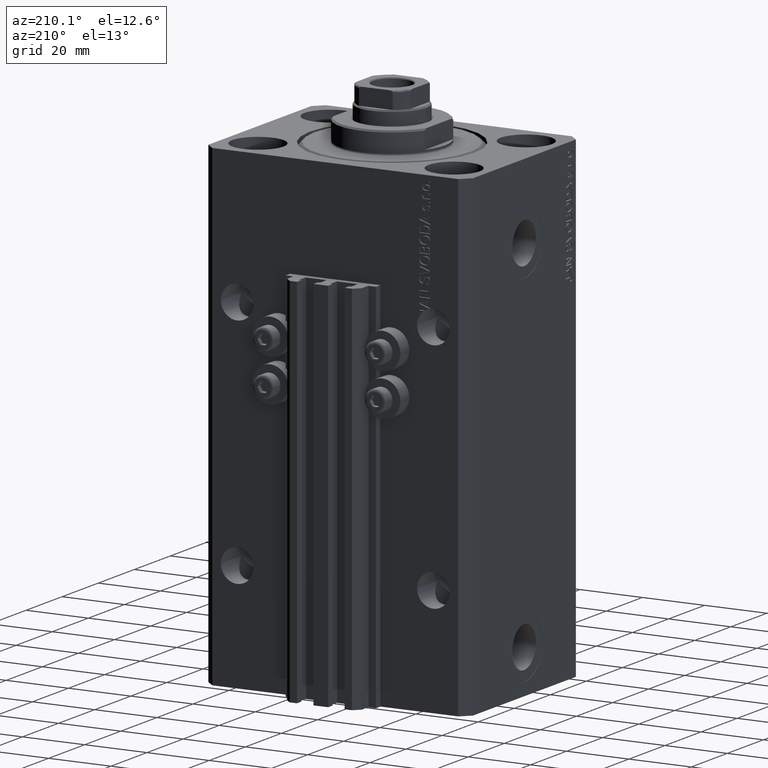
[diagram: clean part render]
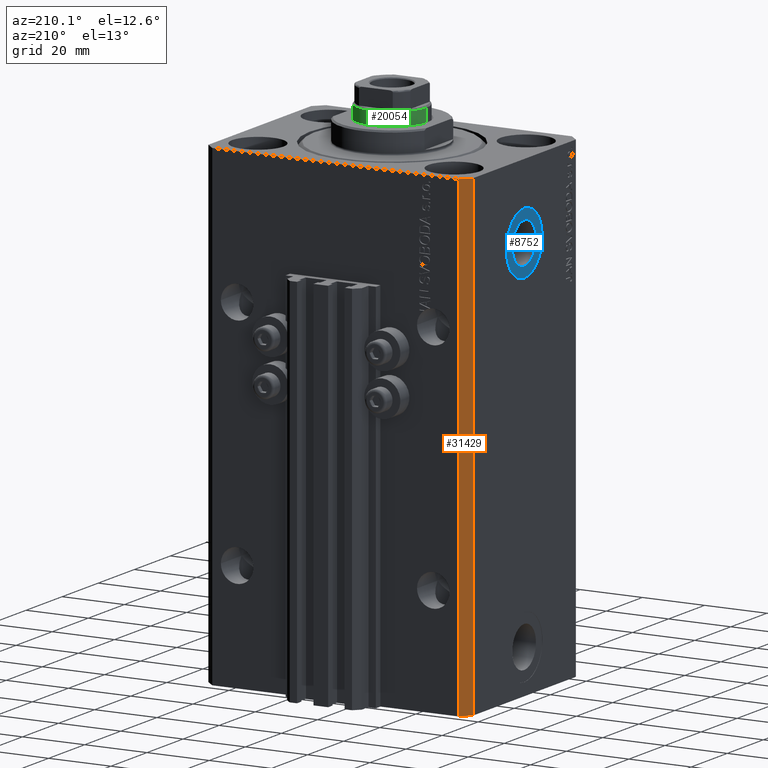
[diagram: same view with three faces highlighted in distinct colors, each labeled with its STEP entity id]
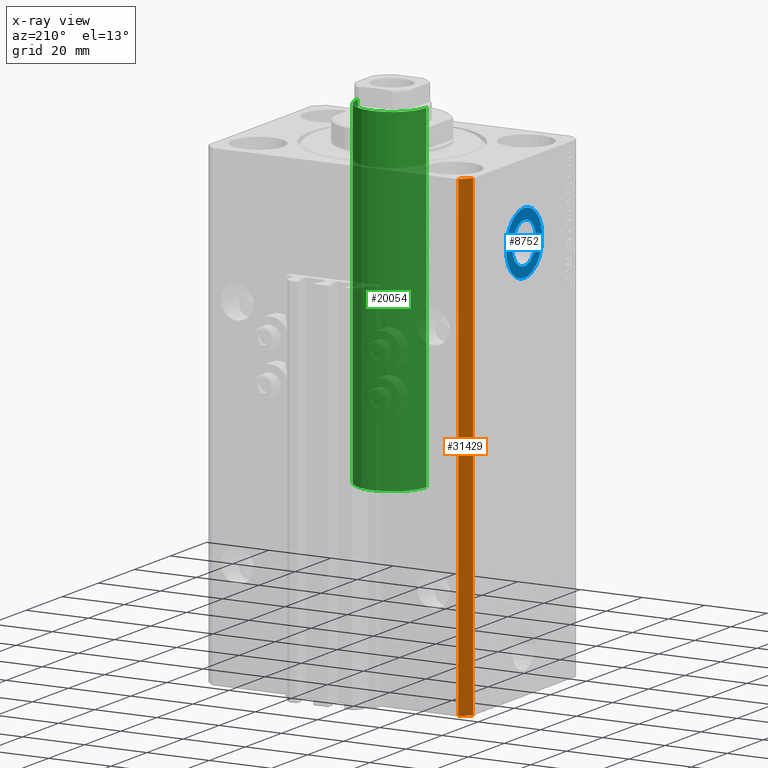
[diagram: x-ray of the same camera — body ghosted, the three highlighted faces saturated]
A machine part, auxiliary view with three faces highlighted in distinct colors.
The next image is the same camera in x-ray (body ghosted, the three faces saturated) — at least one of them is partly hidden behind the body in this view.
Their STEP definitions:

[orange] entity #31429 — the highlighted planar face has unit normal (-0.7071, 0.7071, 0).
#127 = VERTEX_POINT ( 'NONE', #7714 ) ;
#3385 = DIRECTION ( 'NONE',  ( 0.000000000000000000, 0.000000000000000000, 1.000000000000000000 ) ) ;
#3902 = PLANE ( 'NONE',  #23379 ) ;
#5916 = VECTOR ( 'NONE', #3385, 1000.000000000000000 ) ;
#6339 = EDGE_CURVE ( 'NONE', #32151, #127, #25115, .T. ) ;
#6736 = VERTEX_POINT ( 'NONE', #27906 ) ;
#6861 = CARTESIAN_POINT ( 'NONE',  ( -39.50000000000000711, 31.50000000000000000, -153.0000000000000000 ) ) ;
#7714 = CARTESIAN_POINT ( 'NONE',  ( -42.50000000000000000, 28.50000000000000000, 0.000000000000000000 ) ) ;
#9529 = CARTESIAN_POINT ( 'NONE',  ( -42.50000000000000000, 28.50000000000000000, -153.0000000000000000 ) ) ;
#9809 = CARTESIAN_POINT ( 'NONE',  ( -39.50000000000000711, 31.50000000000000000, -153.0000000000000000 ) ) ;
#10427 = VECTOR ( 'NONE', #46942, 1000.000000000000000 ) ;
#12458 = EDGE_CURVE ( 'NONE', #15511, #32151, #48421, .T. ) ;
#15511 = VERTEX_POINT ( 'NONE', #9809 ) ;
#16386 = DIRECTION ( 'NONE',  ( -0.7071067811865471286, -0.7071067811865479058, 0.000000000000000000 ) ) ;
#16877 = CARTESIAN_POINT ( 'NONE',  ( -39.50000000000000711, 31.50000000000000000, 0.000000000000000000 ) ) ;
#18406 = ORIENTED_EDGE ( 'NONE', *, *, #6339, .T. ) ;
#20845 = VECTOR ( 'NONE', #16386, 1000.000000000000000 ) ;
#22077 = LINE ( 'NONE', #29006, #5916 ) ;
#23379 = AXIS2_PLACEMENT_3D ( 'NONE', #41300, #32709, #29514 ) ;
#25115 = LINE ( 'NONE', #9529, #10427 ) ;
#27906 = CARTESIAN_POINT ( 'NONE',  ( -39.50000000000000711, 31.50000000000000000, 0.000000000000000000 ) ) ;
#29006 = CARTESIAN_POINT ( 'NONE',  ( -39.50000000000000711, 31.50000000000000000, -153.0000000000000000 ) ) ;
#29514 = DIRECTION ( 'NONE',  ( -0.7071067811865471286, -0.7071067811865479058, 0.000000000000000000 ) ) ;
#30690 = ORIENTED_EDGE ( 'NONE', *, *, #12458, .T. ) ;
#31389 = LINE ( 'NONE', #16877, #20845 ) ;
#31429 = ADVANCED_FACE ( 'NONE', ( #33428 ), #3902, .T. ) ;
#32151 = VERTEX_POINT ( 'NONE', #32426 ) ;
#32426 = CARTESIAN_POINT ( 'NONE',  ( -42.50000000000000000, 28.50000000000000000, -153.0000000000000000 ) ) ;
#32709 = DIRECTION ( 'NONE',  ( -0.7071067811865479058, 0.7071067811865471286, 0.000000000000000000 ) ) ;
#33428 = FACE_OUTER_BOUND ( 'NONE', #44779, .T. ) ;
#40171 = VECTOR ( 'NONE', #44010, 1000.000000000000000 ) ;
#41274 = EDGE_CURVE ( 'NONE', #15511, #6736, #22077, .T. ) ;
#41300 = CARTESIAN_POINT ( 'NONE',  ( -39.50000000000000711, 31.50000000000000000, -153.0000000000000000 ) ) ;
#41424 = EDGE_CURVE ( 'NONE', #6736, #127, #31389, .T. ) ;
#41464 = ORIENTED_EDGE ( 'NONE', *, *, #41424, .F. ) ;
#42733 = ORIENTED_EDGE ( 'NONE', *, *, #41274, .F. ) ;
#44010 = DIRECTION ( 'NONE',  ( -0.7071067811865471286, -0.7071067811865479058, 0.000000000000000000 ) ) ;
#44779 = EDGE_LOOP ( 'NONE', ( #41464, #42733, #30690, #18406 ) ) ;
#46942 = DIRECTION ( 'NONE',  ( 0.000000000000000000, 0.000000000000000000, 1.000000000000000000 ) ) ;
#48421 = LINE ( 'NONE', #6861, #40171 ) ;

[blue] entity #8752 — the highlighted planar face has unit normal (-1, 0, 0).
#818 = CARTESIAN_POINT ( 'NONE',  ( -42.39999999999999858, -3.469446951953614189E-15, -14.00000000000000000 ) ) ;
#1931 = CARTESIAN_POINT ( 'NONE',  ( -42.39999999999999858, -3.469446951953614189E-15, -24.00000000000000000 ) ) ;
#2478 = ORIENTED_EDGE ( 'NONE', *, *, #45964, .T. ) ;
#2924 = CARTESIAN_POINT ( 'NONE',  ( -42.39999999999999858, -2.244800152806261524E-15, -34.00000000000000000 ) ) ;
#4267 = CARTESIAN_POINT ( 'NONE',  ( -42.39999999999999858, -3.469446951953614189E-15, -24.00000000000000000 ) ) ;
#7691 = EDGE_LOOP ( 'NONE', ( #2478, #33466 ) ) ;
#8752 = ADVANCED_FACE ( 'NONE', ( #19985, #46064 ), #34270, .T. ) ;
#9371 = VERTEX_POINT ( 'NONE', #18029 ) ;
#9775 = CARTESIAN_POINT ( 'NONE',  ( -42.39999999999999858, -3.469446951953614189E-15, -17.42000000000000171 ) ) ;
#12462 = VERTEX_POINT ( 'NONE', #2924 ) ;
#12904 = CARTESIAN_POINT ( 'NONE',  ( -42.39999999999999858, -3.469446951953614189E-15, -24.00000000000000000 ) ) ;
#15901 = DIRECTION ( 'NONE',  ( -1.000000000000000000, 0.000000000000000000, 0.000000000000000000 ) ) ;
#17542 = EDGE_CURVE ( 'NONE', #9371, #46534, #33212, .T. ) ;
#18029 = CARTESIAN_POINT ( 'NONE',  ( -42.39999999999999858, -2.663629358114655936E-15, -30.57999999999999829 ) ) ;
#19985 = FACE_BOUND ( 'NONE', #42497, .T. ) ;
#21766 = AXIS2_PLACEMENT_3D ( 'NONE', #1931, #29010, #35888 ) ;
#21937 = DIRECTION ( 'NONE',  ( -1.000000000000000000, 0.000000000000000000, 0.000000000000000000 ) ) ;
#25147 = CARTESIAN_POINT ( 'NONE',  ( -42.39999999999999858, -3.469446951953614189E-15, -24.00000000000000000 ) ) ;
#25366 = ORIENTED_EDGE ( 'NONE', *, *, #17542, .F. ) ;
#27925 = DIRECTION ( 'NONE',  ( -1.000000000000000000, 0.000000000000000000, 0.000000000000000000 ) ) ;
#28854 = CIRCLE ( 'NONE', #39948, 6.579999999999999183 ) ;
#29010 = DIRECTION ( 'NONE',  ( -1.000000000000000000, 0.000000000000000000, 0.000000000000000000 ) ) ;
#30675 = CARTESIAN_POINT ( 'NONE',  ( -42.39999999999999858, -3.469446951953614189E-15, -24.00000000000000000 ) ) ;
#30912 = DIRECTION ( 'NONE',  ( 0.000000000000000000, 0.000000000000000000, 1.000000000000000000 ) ) ;
#31273 = CIRCLE ( 'NONE', #21766, 10.00000000000000000 ) ;
#31774 = VERTEX_POINT ( 'NONE', #818 ) ;
#32745 = AXIS2_PLACEMENT_3D ( 'NONE', #12904, #27925, #44080 ) ;
#33096 = EDGE_CURVE ( 'NONE', #12462, #31774, #31273, .T. ) ;
#33212 = CIRCLE ( 'NONE', #44259, 6.579999999999999183 ) ;
#33391 = EDGE_CURVE ( 'NONE', #46534, #9371, #28854, .T. ) ;
#33466 = ORIENTED_EDGE ( 'NONE', *, *, #33096, .T. ) ;
#34270 = PLANE ( 'NONE',  #37255 ) ;
#34910 = ORIENTED_EDGE ( 'NONE', *, *, #33391, .F. ) ;
#35888 = DIRECTION ( 'NONE',  ( 0.000000000000000000, 0.000000000000000000, 1.000000000000000000 ) ) ;
#37255 = AXIS2_PLACEMENT_3D ( 'NONE', #4267, #46304, #42388 ) ;
#37443 = CIRCLE ( 'NONE', #32745, 10.00000000000000000 ) ;
#39948 = AXIS2_PLACEMENT_3D ( 'NONE', #30675, #15901, #30912 ) ;
#40164 = DIRECTION ( 'NONE',  ( 0.000000000000000000, 0.000000000000000000, 1.000000000000000000 ) ) ;
#42388 = DIRECTION ( 'NONE',  ( 0.000000000000000000, 0.000000000000000000, 1.000000000000000000 ) ) ;
#42497 = EDGE_LOOP ( 'NONE', ( #34910, #25366 ) ) ;
#44080 = DIRECTION ( 'NONE',  ( 0.000000000000000000, 0.000000000000000000, 1.000000000000000000 ) ) ;
#44259 = AXIS2_PLACEMENT_3D ( 'NONE', #25147, #21937, #40164 ) ;
#45964 = EDGE_CURVE ( 'NONE', #31774, #12462, #37443, .T. ) ;
#46064 = FACE_OUTER_BOUND ( 'NONE', #7691, .T. ) ;
#46304 = DIRECTION ( 'NONE',  ( -1.000000000000000000, 0.000000000000000000, 0.000000000000000000 ) ) ;
#46534 = VERTEX_POINT ( 'NONE', #9775 ) ;

[green] entity #20054 — the highlighted cylindrical surface (partial cylindrical patch) has radius 11 mm, axis along (-0, -0, -1).
#572 = VERTEX_POINT ( 'NONE', #37900 ) ;
#4000 = ORIENTED_EDGE ( 'NONE', *, *, #21446, .T. ) ;
#4516 = DIRECTION ( 'NONE',  ( -0.000000000000000000, -0.000000000000000000, -1.000000000000000000 ) ) ;
#4706 = LINE ( 'NONE', #8160, #40478 ) ;
#4898 = CARTESIAN_POINT ( 'NONE',  ( 0.000000000000000000, 0.000000000000000000, 152.6000000000000512 ) ) ;
#4933 = CIRCLE ( 'NONE', #32450, 11.00000000000000000 ) ;
#8160 = CARTESIAN_POINT ( 'NONE',  ( 11.00000000000000000, 1.347111479062088405E-15, 153.1000000000000227 ) ) ;
#8197 = LINE ( 'NONE', #38212, #41261 ) ;
#9479 = CYLINDRICAL_SURFACE ( 'NONE', #13662, 11.00000000000000000 ) ;
#11218 = CIRCLE ( 'NONE', #33978, 11.00000000000000000 ) ;
#12222 = VERTEX_POINT ( 'NONE', #17747 ) ;
#13227 = CARTESIAN_POINT ( 'NONE',  ( -11.00000000000000000, 0.000000000000000000, 44.60000000000000142 ) ) ;
#13662 = AXIS2_PLACEMENT_3D ( 'NONE', #24497, #39511, #20806 ) ;
#14348 = VERTEX_POINT ( 'NONE', #13227 ) ;
#15246 = DIRECTION ( 'NONE',  ( 1.000000000000000000, 0.000000000000000000, 0.000000000000000000 ) ) ;
#17747 = CARTESIAN_POINT ( 'NONE',  ( -11.00000000000000000, 0.000000000000000000, 152.6000000000000512 ) ) ;
#20054 = ADVANCED_FACE ( 'NONE', ( #35568 ), #9479, .T. ) ;
#20806 = DIRECTION ( 'NONE',  ( -1.000000000000000000, 0.000000000000000000, 0.000000000000000000 ) ) ;
#21443 = EDGE_CURVE ( 'NONE', #36559, #14348, #4933, .T. ) ;
#21446 = EDGE_CURVE ( 'NONE', #12222, #572, #11218, .T. ) ;
#24497 = CARTESIAN_POINT ( 'NONE',  ( 0.000000000000000000, 0.000000000000000000, 153.1000000000000227 ) ) ;
#24950 = EDGE_CURVE ( 'NONE', #572, #36559, #4706, .T. ) ;
#25438 = ORIENTED_EDGE ( 'NONE', *, *, #21443, .T. ) ;
#26490 = EDGE_CURVE ( 'NONE', #12222, #14348, #8197, .T. ) ;
#27050 = DIRECTION ( 'NONE',  ( 0.000000000000000000, 0.000000000000000000, 1.000000000000000000 ) ) ;
#27297 = DIRECTION ( 'NONE',  ( 1.000000000000000000, 0.000000000000000000, 0.000000000000000000 ) ) ;
#29379 = ORIENTED_EDGE ( 'NONE', *, *, #24950, .T. ) ;
#31495 = CARTESIAN_POINT ( 'NONE',  ( 11.00000000000000000, 1.347111479062088405E-15, 44.60000000000000142 ) ) ;
#32078 = ORIENTED_EDGE ( 'NONE', *, *, #26490, .F. ) ;
#32450 = AXIS2_PLACEMENT_3D ( 'NONE', #38601, #27050, #27297 ) ;
#32758 = EDGE_LOOP ( 'NONE', ( #4000, #29379, #25438, #32078 ) ) ;
#33978 = AXIS2_PLACEMENT_3D ( 'NONE', #4898, #34431, #15246 ) ;
#34431 = DIRECTION ( 'NONE',  ( 0.000000000000000000, 0.000000000000000000, -1.000000000000000000 ) ) ;
#34713 = DIRECTION ( 'NONE',  ( -0.000000000000000000, -0.000000000000000000, -1.000000000000000000 ) ) ;
#35568 = FACE_OUTER_BOUND ( 'NONE', #32758, .T. ) ;
#36559 = VERTEX_POINT ( 'NONE', #31495 ) ;
#37900 = CARTESIAN_POINT ( 'NONE',  ( 11.00000000000000000, 1.347111479062088405E-15, 152.6000000000000512 ) ) ;
#38212 = CARTESIAN_POINT ( 'NONE',  ( -11.00000000000000000, 0.000000000000000000, 153.1000000000000227 ) ) ;
#38601 = CARTESIAN_POINT ( 'NONE',  ( 0.000000000000000000, 0.000000000000000000, 44.60000000000000142 ) ) ;
#39511 = DIRECTION ( 'NONE',  ( -0.000000000000000000, -0.000000000000000000, -1.000000000000000000 ) ) ;
#40478 = VECTOR ( 'NONE', #34713, 1000.000000000000000 ) ;
#41261 = VECTOR ( 'NONE', #4516, 1000.000000000000000 ) ;